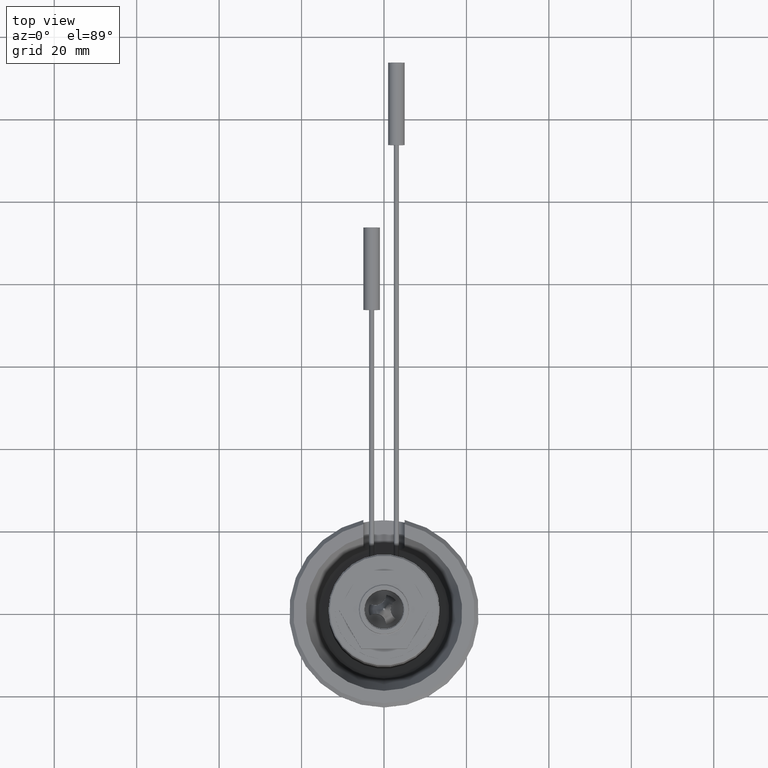
[diagram: clean part render]
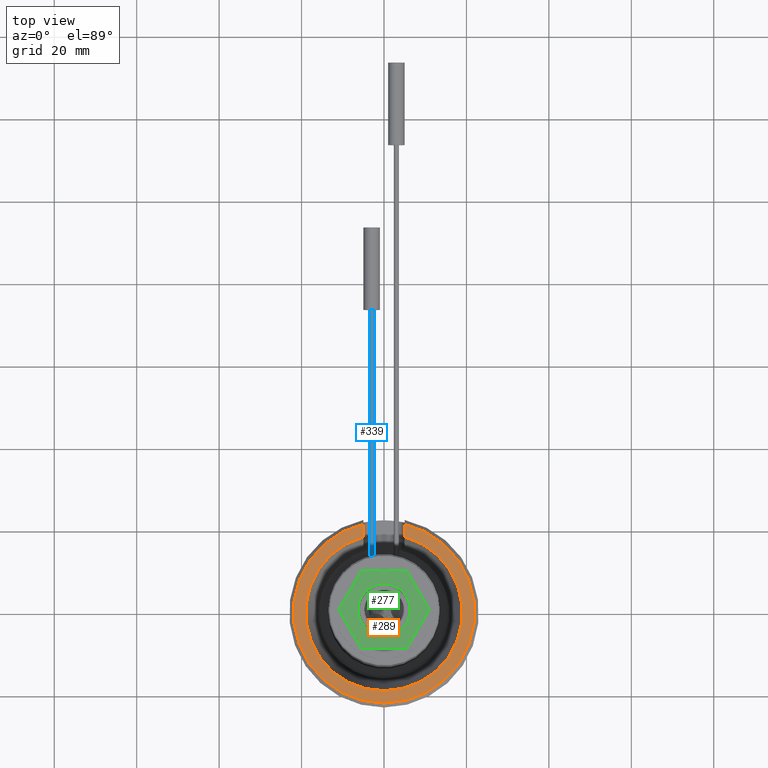
[diagram: same view with three faces highlighted in distinct colors, each labeled with its STEP entity id]
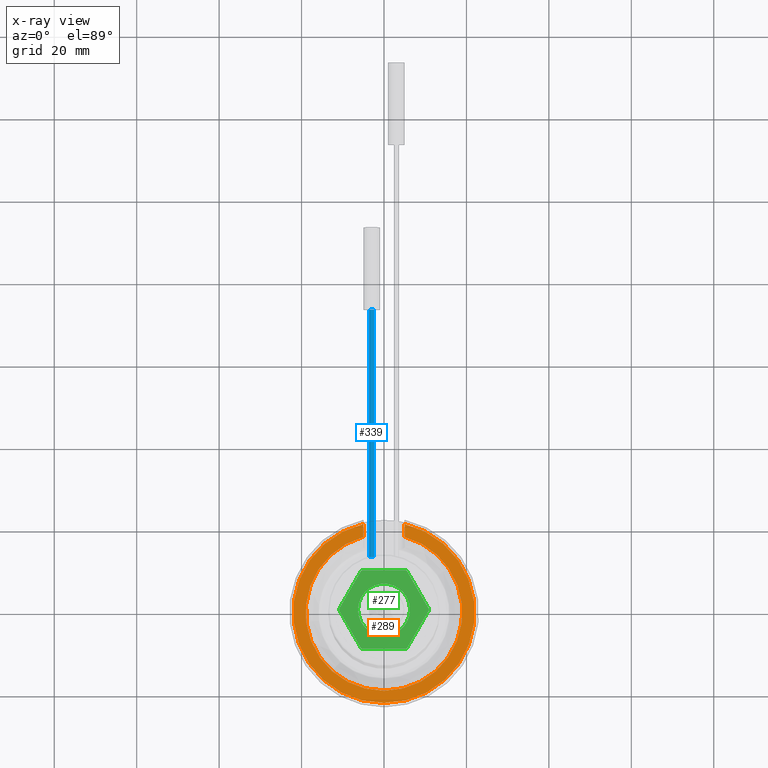
[diagram: x-ray of the same camera — body ghosted, the three highlighted faces saturated]
A machine part, top view with three faces highlighted in distinct colors.
The next image is the same camera in x-ray (body ghosted, the three faces saturated) — at least one of them is partly hidden behind the body in this view.
Their STEP definitions:

[orange] entity #289 — the highlighted planar face has unit normal (0, 0, -1).
#59=LINE('',#1873,#103);
#60=LINE('',#1877,#104);
#103=VECTOR('',#1394,1.);
#104=VECTOR('',#1397,1.);
#196=PLANE('',#1167);
#238=FACE_OUTER_BOUND('',#457,.T.);
#289=ADVANCED_FACE('',(#238),#196,.F.);
#457=EDGE_LOOP('',(#623,#624,#625,#626));
#623=ORIENTED_EDGE('',*,*,#968,.T.);
#624=ORIENTED_EDGE('',*,*,#969,.T.);
#625=ORIENTED_EDGE('',*,*,#970,.F.);
#626=ORIENTED_EDGE('',*,*,#965,.F.);
#858=VERTEX_POINT('',#1854);
#859=VERTEX_POINT('',#1856);
#861=VERTEX_POINT('',#1874);
#862=VERTEX_POINT('',#1876);
#965=EDGE_CURVE('',#858,#859,#1059,.T.);
#968=EDGE_CURVE('',#858,#861,#59,.T.);
#969=EDGE_CURVE('',#861,#862,#1060,.T.);
#970=EDGE_CURVE('',#859,#862,#60,.T.);
#1059=CIRCLE('',#1164,18.9996646888082);
#1060=CIRCLE('',#1166,22.);
#1164=AXIS2_PLACEMENT_3D('',#1855,#1390,#1391);
#1166=AXIS2_PLACEMENT_3D('',#1875,#1395,#1396);
#1167=AXIS2_PLACEMENT_3D('',#1878,#1398,#1399);
#1390=DIRECTION('',(0.,0.,1.));
#1391=DIRECTION('',(1.,0.,0.));
#1394=DIRECTION('',(0.,1.,0.));
#1395=DIRECTION('',(0.,0.,1.));
#1396=DIRECTION('',(-1.,0.,0.));
#1397=DIRECTION('',(0.,1.,0.));
#1398=DIRECTION('',(0.,0.,-1.));
#1399=DIRECTION('',(-1.,0.,0.));
#1854=CARTESIAN_POINT('',(-4.99999999999501,18.3299552178175,25.));
#1855=CARTESIAN_POINT('',(0.,0.,25.));
#1856=CARTESIAN_POINT('',(4.999999999995,18.3299552178175,25.));
#1873=CARTESIAN_POINT('',(-4.99999999999501,13.5,25.));
#1874=CARTESIAN_POINT('',(-4.99999999999501,21.4242852856297,25.));
#1875=CARTESIAN_POINT('',(0.,0.,25.));
#1876=CARTESIAN_POINT('',(4.999999999995,21.4242852856297,25.));
#1877=CARTESIAN_POINT('',(4.999999999995,13.5,25.));
#1878=CARTESIAN_POINT('',(-23.,0.,25.));

[blue] entity #339 — the highlighted cylindrical surface (bore or boss wall) has radius 0.6 mm, axis along (0, -1, 0).
#339=ADVANCED_FACE('',(#425,#426),#364,.T.);
#364=CYLINDRICAL_SURFACE('',#1247,0.6);
#425=FACE_BOUND('',#530,.T.);
#426=FACE_BOUND('',#531,.T.);
#530=EDGE_LOOP('',(#792));
#531=EDGE_LOOP('',(#793));
#792=ORIENTED_EDGE('',*,*,#1023,.F.);
#793=ORIENTED_EDGE('',*,*,#1024,.T.);
#892=VERTEX_POINT('',#2040);
#893=VERTEX_POINT('',#2042);
#1023=EDGE_CURVE('',#892,#892,#1089,.T.);
#1024=EDGE_CURVE('',#893,#893,#1090,.T.);
#1089=CIRCLE('',#1245,0.6);
#1090=CIRCLE('',#1246,0.6);
#1245=AXIS2_PLACEMENT_3D('',#2039,#1568,#1569);
#1246=AXIS2_PLACEMENT_3D('',#2041,#1570,#1571);
#1247=AXIS2_PLACEMENT_3D('',#2043,#1572,#1573);
#1568=DIRECTION('',(0.,1.,0.));
#1569=DIRECTION('',(1.,0.,0.));
#1570=DIRECTION('',(0.,1.,0.));
#1571=DIRECTION('',(1.,0.,0.));
#1572=DIRECTION('',(0.,-1.,0.));
#1573=DIRECTION('',(0.,0.,-1.));
#2039=CARTESIAN_POINT('',(-3.,73.5,18.5));
#2040=CARTESIAN_POINT('',(-2.4,73.5,18.5));
#2041=CARTESIAN_POINT('',(-3.,13.5,18.5));
#2042=CARTESIAN_POINT('',(-2.4,13.5,18.5));
#2043=CARTESIAN_POINT('',(-3.,73.5,18.5));

[green] entity #277 — the highlighted planar face has unit normal (0, 0, -1).
#31=LINE('',#1669,#75);
#32=LINE('',#1674,#76);
#33=LINE('',#1678,#77);
#34=LINE('',#1682,#78);
#35=LINE('',#1686,#79);
#36=LINE('',#1690,#80);
#75=VECTOR('',#1294,1.);
#76=VECTOR('',#1297,1.);
#77=VECTOR('',#1300,1.);
#78=VECTOR('',#1303,1.);
#79=VECTOR('',#1306,1.);
#80=VECTOR('',#1309,1.);
#194=PLANE('',#1136);
#277=ADVANCED_FACE('',(#373,#374),#194,.F.);
#373=FACE_BOUND('',#441,.T.);
#374=FACE_BOUND('',#442,.T.);
#441=EDGE_LOOP('',(#553));
#442=EDGE_LOOP('',(#554,#555,#556,#557,#558,#559,#560,#561,#562,#563,#564,
#565));
#553=ORIENTED_EDGE('',*,*,#907,.T.);
#554=ORIENTED_EDGE('',*,*,#908,.F.);
#555=ORIENTED_EDGE('',*,*,#909,.T.);
#556=ORIENTED_EDGE('',*,*,#910,.F.);
#557=ORIENTED_EDGE('',*,*,#911,.T.);
#558=ORIENTED_EDGE('',*,*,#912,.F.);
#559=ORIENTED_EDGE('',*,*,#913,.T.);
#560=ORIENTED_EDGE('',*,*,#914,.F.);
#561=ORIENTED_EDGE('',*,*,#915,.T.);
#562=ORIENTED_EDGE('',*,*,#916,.F.);
#563=ORIENTED_EDGE('',*,*,#917,.T.);
#564=ORIENTED_EDGE('',*,*,#918,.F.);
#565=ORIENTED_EDGE('',*,*,#919,.T.);
#809=VERTEX_POINT('',#1668);
#810=VERTEX_POINT('',#1670);
#811=VERTEX_POINT('',#1671);
#812=VERTEX_POINT('',#1673);
#813=VERTEX_POINT('',#1675);
#814=VERTEX_POINT('',#1677);
#815=VERTEX_POINT('',#1679);
#816=VERTEX_POINT('',#1681);
#817=VERTEX_POINT('',#1683);
#818=VERTEX_POINT('',#1685);
#819=VERTEX_POINT('',#1687);
#820=VERTEX_POINT('',#1689);
#821=VERTEX_POINT('',#1691);
#907=EDGE_CURVE('',#809,#809,#1035,.T.);
#908=EDGE_CURVE('',#810,#811,#31,.T.);
#909=EDGE_CURVE('',#810,#812,#1036,.T.);
#910=EDGE_CURVE('',#813,#812,#32,.T.);
#911=EDGE_CURVE('',#813,#814,#1037,.T.);
#912=EDGE_CURVE('',#815,#814,#33,.T.);
#913=EDGE_CURVE('',#815,#816,#1038,.T.);
#914=EDGE_CURVE('',#817,#816,#34,.T.);
#915=EDGE_CURVE('',#817,#818,#1039,.T.);
#916=EDGE_CURVE('',#819,#818,#35,.T.);
#917=EDGE_CURVE('',#819,#820,#1040,.T.);
#918=EDGE_CURVE('',#821,#820,#36,.T.);
#919=EDGE_CURVE('',#821,#811,#1041,.T.);
#1035=CIRCLE('',#1129,6.3);
#1036=CIRCLE('',#1130,10.9);
#1037=CIRCLE('',#1131,10.9);
#1038=CIRCLE('',#1132,10.9);
#1039=CIRCLE('',#1133,10.9);
#1040=CIRCLE('',#1134,10.9);
#1041=CIRCLE('',#1135,10.9);
#1129=AXIS2_PLACEMENT_3D('',#1667,#1292,#1293);
#1130=AXIS2_PLACEMENT_3D('',#1672,#1295,#1296);
#1131=AXIS2_PLACEMENT_3D('',#1676,#1298,#1299);
#1132=AXIS2_PLACEMENT_3D('',#1680,#1301,#1302);
#1133=AXIS2_PLACEMENT_3D('',#1684,#1304,#1305);
#1134=AXIS2_PLACEMENT_3D('',#1688,#1307,#1308);
#1135=AXIS2_PLACEMENT_3D('',#1692,#1310,#1311);
#1136=AXIS2_PLACEMENT_3D('',#1693,#1312,#1313);
#1292=DIRECTION('',(0.,0.,-1.));
#1293=DIRECTION('',(-1.,0.,0.));
#1294=DIRECTION('',(-0.500000000000003,0.866025403784437,0.));
#1295=DIRECTION('',(0.,0.,1.));
#1296=DIRECTION('',(1.,0.,0.));
#1297=DIRECTION('',(-1.,-2.27221380597914E-15,0.));
#1298=DIRECTION('',(0.,0.,1.));
#1299=DIRECTION('',(1.,0.,0.));
#1300=DIRECTION('',(-0.499999999999999,-0.866025403784439,0.));
#1301=DIRECTION('',(0.,0.,1.));
#1302=DIRECTION('',(1.,0.,0.));
#1303=DIRECTION('',(0.500000000000001,-0.866025403784438,0.));
#1304=DIRECTION('',(0.,0.,1.));
#1305=DIRECTION('',(1.,0.,0.));
#1306=DIRECTION('',(1.,0.,0.));
#1307=DIRECTION('',(0.,0.,1.));
#1308=DIRECTION('',(1.,0.,0.));
#1309=DIRECTION('',(0.499999999999996,0.866025403784441,0.));
#1310=DIRECTION('',(0.,0.,1.));
#1311=DIRECTION('',(1.,0.,0.));
#1312=DIRECTION('',(0.,0.,-1.));
#1313=DIRECTION('',(-1.,0.,0.));
#1667=CARTESIAN_POINT('',(0.,0.,63.7000000000001));
#1668=CARTESIAN_POINT('',(-6.3,0.,63.7000000000001));
#1669=CARTESIAN_POINT('',(-5.55516349277466,-9.37817458616247,63.7000000000001));
#1670=CARTESIAN_POINT('',(-5.55516349277466,-9.37817458616247,63.7000000000001));
#1671=CARTESIAN_POINT('',(-10.8993191791296,-0.121825413837578,63.7000000000001));
#1672=CARTESIAN_POINT('',(0.,0.,63.7000000000001));
#1673=CARTESIAN_POINT('',(-5.34415568635493,-9.50000000000001,63.7000000000001));
#1674=CARTESIAN_POINT('',(5.34415568635498,-9.49999999999999,63.7000000000001));
#1675=CARTESIAN_POINT('',(5.34415568635498,-9.49999999999999,63.7000000000001));
#1676=CARTESIAN_POINT('',(0.,0.,63.7000000000001));
#1677=CARTESIAN_POINT('',(5.5551634927747,-9.37817458616245,63.7000000000001));
#1678=CARTESIAN_POINT('',(10.8993191791296,-0.121825413837527,63.7000000000001));
#1679=CARTESIAN_POINT('',(10.8993191791296,-0.121825413837527,63.7000000000001));
#1680=CARTESIAN_POINT('',(0.,0.,63.7000000000001));
#1681=CARTESIAN_POINT('',(10.8993191791296,0.121825413837552,63.7000000000001));
#1682=CARTESIAN_POINT('',(5.55516349277468,9.37817458616246,63.7000000000001));
#1683=CARTESIAN_POINT('',(5.55516349277468,9.37817458616246,63.7000000000001));
#1684=CARTESIAN_POINT('',(0.,0.,63.7000000000001));
#1685=CARTESIAN_POINT('',(5.34415568635496,9.5,63.7000000000001));
#1686=CARTESIAN_POINT('',(-5.34415568635496,9.5,63.7000000000001));
#1687=CARTESIAN_POINT('',(-5.34415568635495,9.5,63.7000000000001));
#1688=CARTESIAN_POINT('',(0.,0.,63.7000000000001));
#1689=CARTESIAN_POINT('',(-5.55516349277473,9.37817458616243,63.7000000000001));
#1690=CARTESIAN_POINT('',(-10.8993191791296,0.121825413837499,63.7000000000001));
#1691=CARTESIAN_POINT('',(-10.8993191791296,0.121825413837501,63.7000000000001));
#1692=CARTESIAN_POINT('',(0.,0.,63.7000000000001));
#1693=CARTESIAN_POINT('',(-6.,0.,63.7000000000001));